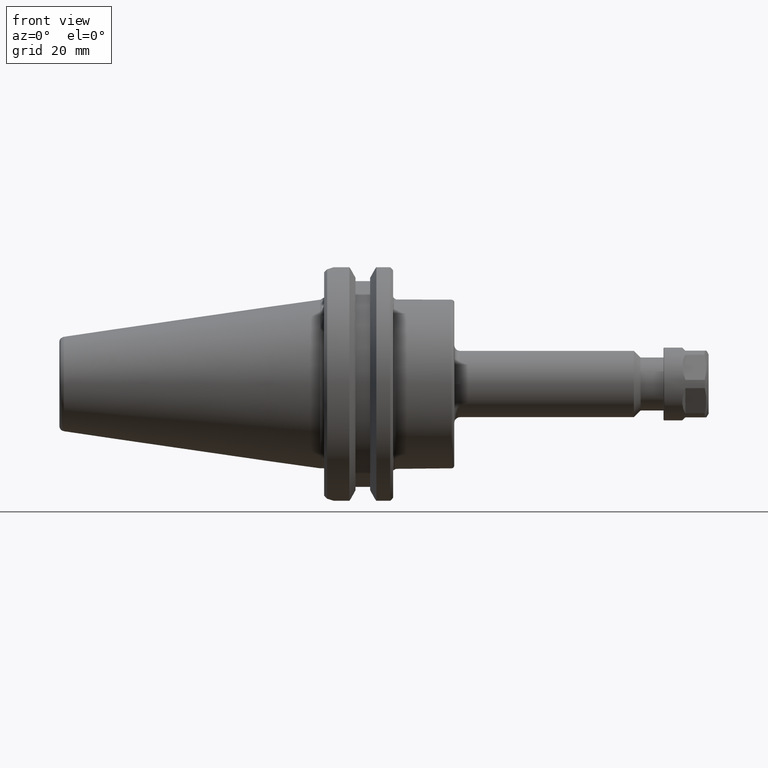
[diagram: clean part render]
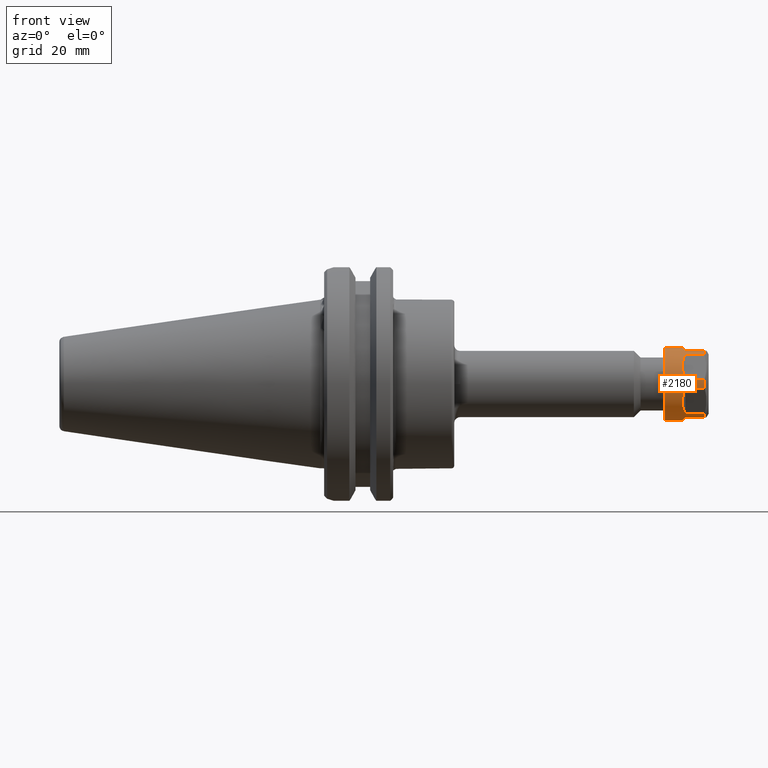
[diagram: same view with one face highlighted and labeled with its STEP entity id]
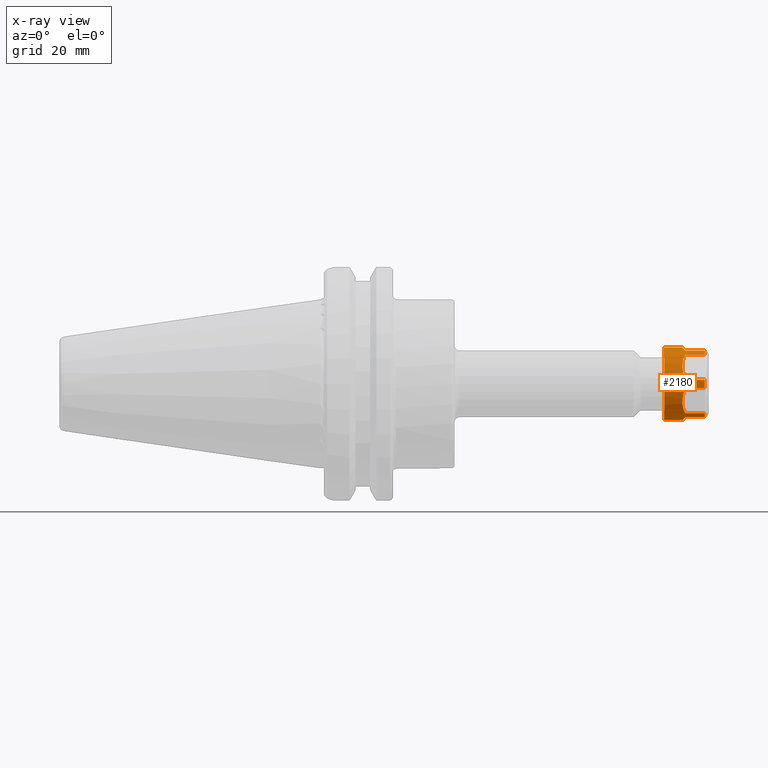
[diagram: x-ray of the same camera — body ghosted, the highlighted face saturated]
A machine part, front view. The second image highlights one B-rep face of the part: STEP entity #2180.
The next image is the same camera in x-ray: the body ghosted, the highlighted face saturated — about 0% of this face is hidden behind the body in this view.
In plain terms, the highlighted cylindrical surface (bore or boss wall) has radius 9.525 mm, axis along (-1, -0, 0).
Its self-contained STEP definition (entity closure, byte-faithful):
#23=ELLIPSE('',#2390,0.53033008588991,0.375);
#24=ELLIPSE('',#2392,0.53033008588991,0.375);
#25=ELLIPSE('',#2394,0.53033008588991,0.375);
#26=ELLIPSE('',#2396,0.53033008588991,0.375);
#27=ELLIPSE('',#2398,0.53033008588991,0.375);
#28=ELLIPSE('',#2400,0.53033008588991,0.375);
#142=CYLINDRICAL_SURFACE('',#2388,0.375);
#243=LINE('',#4425,#357);
#244=LINE('',#4429,#358);
#245=LINE('',#4433,#359);
#246=LINE('',#4437,#360);
#247=LINE('',#4441,#361);
#248=LINE('',#4445,#362);
#249=LINE('',#4449,#363);
#250=LINE('',#4453,#364);
#251=LINE('',#4457,#365);
#252=LINE('',#4461,#366);
#253=LINE('',#4465,#367);
#254=LINE('',#4469,#368);
#357=VECTOR('',#2898,0.2);
#358=VECTOR('',#2901,0.2);
#359=VECTOR('',#2904,0.2);
#360=VECTOR('',#2907,0.2);
#361=VECTOR('',#2910,0.2);
#362=VECTOR('',#2913,0.2);
#363=VECTOR('',#2916,0.2);
#364=VECTOR('',#2919,0.2);
#365=VECTOR('',#2922,0.2);
#366=VECTOR('',#2925,0.2);
#367=VECTOR('',#2928,0.2);
#368=VECTOR('',#2931,0.2);
#476=FACE_BOUND('',#770,.T.);
#597=FACE_OUTER_BOUND('',#769,.T.);
#769=EDGE_LOOP('',(#1886,#1887,#1888,#1889,#1890,#1891,#1892,#1893,#1894,
#1895,#1896,#1897,#1898,#1899,#1900,#1901,#1902,#1903,#1904,#1905,#1906,
#1907,#1908,#1909));
#770=EDGE_LOOP('',(#1910));
#885=CIRCLE('',#2384,0.375);
#888=CIRCLE('',#2389,0.375);
#889=CIRCLE('',#2391,0.375);
#890=CIRCLE('',#2393,0.375);
#891=CIRCLE('',#2395,0.375);
#892=CIRCLE('',#2397,0.375);
#893=CIRCLE('',#2399,0.375);
#1096=VERTEX_POINT('',#4415);
#1099=VERTEX_POINT('',#4423);
#1100=VERTEX_POINT('',#4424);
#1101=VERTEX_POINT('',#4426);
#1102=VERTEX_POINT('',#4428);
#1103=VERTEX_POINT('',#4430);
#1104=VERTEX_POINT('',#4432);
#1105=VERTEX_POINT('',#4434);
#1106=VERTEX_POINT('',#4436);
#1107=VERTEX_POINT('',#4438);
#1108=VERTEX_POINT('',#4440);
#1109=VERTEX_POINT('',#4442);
#1110=VERTEX_POINT('',#4444);
#1111=VERTEX_POINT('',#4446);
#1112=VERTEX_POINT('',#4448);
#1113=VERTEX_POINT('',#4450);
#1114=VERTEX_POINT('',#4452);
#1115=VERTEX_POINT('',#4454);
#1116=VERTEX_POINT('',#4456);
#1117=VERTEX_POINT('',#4458);
#1118=VERTEX_POINT('',#4460);
#1119=VERTEX_POINT('',#4462);
#1120=VERTEX_POINT('',#4464);
#1121=VERTEX_POINT('',#4466);
#1122=VERTEX_POINT('',#4468);
#1368=EDGE_CURVE('',#1096,#1096,#885,.T.);
#1371=EDGE_CURVE('',#1099,#1100,#243,.T.);
#1372=EDGE_CURVE('',#1100,#1101,#888,.T.);
#1373=EDGE_CURVE('',#1101,#1102,#244,.T.);
#1374=EDGE_CURVE('',#1102,#1103,#23,.T.);
#1375=EDGE_CURVE('',#1103,#1104,#245,.T.);
#1376=EDGE_CURVE('',#1104,#1105,#889,.T.);
#1377=EDGE_CURVE('',#1105,#1106,#246,.T.);
#1378=EDGE_CURVE('',#1106,#1107,#24,.T.);
#1379=EDGE_CURVE('',#1107,#1108,#247,.T.);
#1380=EDGE_CURVE('',#1108,#1109,#890,.T.);
#1381=EDGE_CURVE('',#1109,#1110,#248,.T.);
#1382=EDGE_CURVE('',#1110,#1111,#25,.T.);
#1383=EDGE_CURVE('',#1111,#1112,#249,.T.);
#1384=EDGE_CURVE('',#1112,#1113,#891,.T.);
#1385=EDGE_CURVE('',#1113,#1114,#250,.T.);
#1386=EDGE_CURVE('',#1114,#1115,#26,.T.);
#1387=EDGE_CURVE('',#1115,#1116,#251,.T.);
#1388=EDGE_CURVE('',#1116,#1117,#892,.T.);
#1389=EDGE_CURVE('',#1117,#1118,#252,.T.);
#1390=EDGE_CURVE('',#1118,#1119,#27,.T.);
#1391=EDGE_CURVE('',#1119,#1120,#253,.T.);
#1392=EDGE_CURVE('',#1120,#1121,#893,.T.);
#1393=EDGE_CURVE('',#1121,#1122,#254,.T.);
#1394=EDGE_CURVE('',#1122,#1099,#28,.T.);
#1886=ORIENTED_EDGE('',*,*,#1371,.T.);
#1887=ORIENTED_EDGE('',*,*,#1372,.T.);
#1888=ORIENTED_EDGE('',*,*,#1373,.T.);
#1889=ORIENTED_EDGE('',*,*,#1374,.T.);
#1890=ORIENTED_EDGE('',*,*,#1375,.T.);
#1891=ORIENTED_EDGE('',*,*,#1376,.T.);
#1892=ORIENTED_EDGE('',*,*,#1377,.T.);
#1893=ORIENTED_EDGE('',*,*,#1378,.T.);
#1894=ORIENTED_EDGE('',*,*,#1379,.T.);
#1895=ORIENTED_EDGE('',*,*,#1380,.T.);
#1896=ORIENTED_EDGE('',*,*,#1381,.T.);
#1897=ORIENTED_EDGE('',*,*,#1382,.T.);
#1898=ORIENTED_EDGE('',*,*,#1383,.T.);
#1899=ORIENTED_EDGE('',*,*,#1384,.T.);
#1900=ORIENTED_EDGE('',*,*,#1385,.T.);
#1901=ORIENTED_EDGE('',*,*,#1386,.T.);
#1902=ORIENTED_EDGE('',*,*,#1387,.T.);
#1903=ORIENTED_EDGE('',*,*,#1388,.T.);
#1904=ORIENTED_EDGE('',*,*,#1389,.T.);
#1905=ORIENTED_EDGE('',*,*,#1390,.T.);
#1906=ORIENTED_EDGE('',*,*,#1391,.T.);
#1907=ORIENTED_EDGE('',*,*,#1392,.T.);
#1908=ORIENTED_EDGE('',*,*,#1393,.T.);
#1909=ORIENTED_EDGE('',*,*,#1394,.T.);
#1910=ORIENTED_EDGE('',*,*,#1368,.F.);
#2180=ADVANCED_FACE('',(#597,#476),#142,.T.);
#2384=AXIS2_PLACEMENT_3D('',#4416,#2888,#2889);
#2388=AXIS2_PLACEMENT_3D('',#4422,#2896,#2897);
#2389=AXIS2_PLACEMENT_3D('',#4427,#2899,#2900);
#2390=AXIS2_PLACEMENT_3D('',#4431,#2902,#2903);
#2391=AXIS2_PLACEMENT_3D('',#4435,#2905,#2906);
#2392=AXIS2_PLACEMENT_3D('',#4439,#2908,#2909);
#2393=AXIS2_PLACEMENT_3D('',#4443,#2911,#2912);
#2394=AXIS2_PLACEMENT_3D('',#4447,#2914,#2915);
#2395=AXIS2_PLACEMENT_3D('',#4451,#2917,#2918);
#2396=AXIS2_PLACEMENT_3D('',#4455,#2920,#2921);
#2397=AXIS2_PLACEMENT_3D('',#4459,#2923,#2924);
#2398=AXIS2_PLACEMENT_3D('',#4463,#2926,#2927);
#2399=AXIS2_PLACEMENT_3D('',#4467,#2929,#2930);
#2400=AXIS2_PLACEMENT_3D('',#4470,#2932,#2933);
#2888=DIRECTION('center_axis',(1.,0.,0.));
#2889=DIRECTION('ref_axis',(0.,-1.,1.22460635382238E-16));
#2896=DIRECTION('center_axis',(1.,0.,0.));
#2897=DIRECTION('ref_axis',(0.,1.,0.));
#2898=DIRECTION('',(-1.,0.,0.));
#2899=DIRECTION('center_axis',(1.,0.,0.));
#2900=DIRECTION('ref_axis',(0.,1.,0.));
#2901=DIRECTION('',(1.,0.,0.));
#2902=DIRECTION('center_axis',(0.707106781186548,-0.353553390593273,0.612372435695795));
#2903=DIRECTION('ref_axis',(0.707106781186547,0.353553390593273,-0.612372435695795));
#2904=DIRECTION('',(-1.,0.,0.));
#2905=DIRECTION('center_axis',(1.,0.,0.));
#2906=DIRECTION('ref_axis',(0.,1.,0.));
#2907=DIRECTION('',(1.,0.,0.));
#2908=DIRECTION('center_axis',(0.707106781186548,-0.707106781186547,0.));
#2909=DIRECTION('ref_axis',(0.707106781186547,0.707106781186548,0.));
#2910=DIRECTION('',(-1.,0.,0.));
#2911=DIRECTION('center_axis',(1.,0.,0.));
#2912=DIRECTION('ref_axis',(0.,1.,0.));
#2913=DIRECTION('',(1.,0.,0.));
#2914=DIRECTION('center_axis',(0.707106781186548,-0.353553390593274,-0.612372435695794));
#2915=DIRECTION('ref_axis',(0.707106781186547,0.353553390593274,0.612372435695794));
#2916=DIRECTION('',(-1.,0.,0.));
#2917=DIRECTION('center_axis',(1.,0.,0.));
#2918=DIRECTION('ref_axis',(0.,1.,0.));
#2919=DIRECTION('',(1.,0.,0.));
#2920=DIRECTION('center_axis',(0.707106781186548,0.353553390593274,-0.612372435695794));
#2921=DIRECTION('ref_axis',(-0.707106781186547,0.353553390593274,-0.612372435695795));
#2922=DIRECTION('',(-1.,0.,0.));
#2923=DIRECTION('center_axis',(1.,0.,0.));
#2924=DIRECTION('ref_axis',(0.,1.,0.));
#2925=DIRECTION('',(1.,0.,0.));
#2926=DIRECTION('center_axis',(0.707106781186548,0.707106781186547,-8.65927457071935E-17));
#2927=DIRECTION('ref_axis',(-0.707106781186547,0.707106781186548,0.));
#2928=DIRECTION('',(-1.,0.,0.));
#2929=DIRECTION('center_axis',(1.,0.,0.));
#2930=DIRECTION('ref_axis',(0.,1.,0.));
#2931=DIRECTION('',(1.,0.,0.));
#2932=DIRECTION('center_axis',(0.707106781186548,0.353553390593274,0.612372435695794));
#2933=DIRECTION('ref_axis',(-0.707106781186547,0.353553390593274,0.612372435695794));
#4415=CARTESIAN_POINT('',(0.455,0.375,0.));
#4416=CARTESIAN_POINT('Origin',(0.455,0.,0.));
#4422=CARTESIAN_POINT('Origin',(0.2525,0.,0.));
#4423=CARTESIAN_POINT('',(0.24,-0.0427067287133629,-0.372560243883594));
#4424=CARTESIAN_POINT('',(0.04,-0.0427067287133629,-0.372560243883594));
#4425=CARTESIAN_POINT('',(0.2525,-0.042706728713363,-0.372560243883594));
#4426=CARTESIAN_POINT('',(0.04,0.0427067287133625,-0.372560243883594));
#4427=CARTESIAN_POINT('Origin',(0.04,0.,0.));
#4428=CARTESIAN_POINT('',(0.24,0.0427067287133625,-0.372560243883594));
#4429=CARTESIAN_POINT('',(0.2525,0.0427067287133625,-0.372560243883594));
#4430=CARTESIAN_POINT('',(0.24,0.301293271286637,-0.2232652339201));
#4431=CARTESIAN_POINT('Origin',(-0.104,0.,0.));
#4432=CARTESIAN_POINT('',(0.04,0.301293271286637,-0.2232652339201));
#4433=CARTESIAN_POINT('',(0.2525,0.301293271286637,-0.2232652339201));
#4434=CARTESIAN_POINT('',(0.04,0.344,-0.149295009963495));
#4435=CARTESIAN_POINT('Origin',(0.04,0.,0.));
#4436=CARTESIAN_POINT('',(0.24,0.344,-0.149295009963495));
#4437=CARTESIAN_POINT('',(0.2525,0.344,-0.149295009963495));
#4438=CARTESIAN_POINT('',(0.24,0.344,0.149295009963495));
#4439=CARTESIAN_POINT('Origin',(-0.104,0.,0.));
#4440=CARTESIAN_POINT('',(0.04,0.344,0.149295009963495));
#4441=CARTESIAN_POINT('',(0.2525,0.344,0.149295009963495));
#4442=CARTESIAN_POINT('',(0.04,0.301293271286637,0.2232652339201));
#4443=CARTESIAN_POINT('Origin',(0.04,0.,0.));
#4444=CARTESIAN_POINT('',(0.24,0.301293271286637,0.2232652339201));
#4445=CARTESIAN_POINT('',(0.2525,0.301293271286637,0.2232652339201));
#4446=CARTESIAN_POINT('',(0.24,0.0427067287133628,0.372560243883594));
#4447=CARTESIAN_POINT('Origin',(-0.104,0.,0.));
#4448=CARTESIAN_POINT('',(0.04,0.0427067287133628,0.372560243883594));
#4449=CARTESIAN_POINT('',(0.2525,0.0427067287133629,0.372560243883594));
#4450=CARTESIAN_POINT('',(0.04,-0.0427067287133626,0.372560243883594));
#4451=CARTESIAN_POINT('Origin',(0.04,0.,0.));
#4452=CARTESIAN_POINT('',(0.24,-0.0427067287133626,0.372560243883594));
#4453=CARTESIAN_POINT('',(0.2525,-0.0427067287133628,0.372560243883594));
#4454=CARTESIAN_POINT('',(0.24,-0.301293271286637,0.2232652339201));
#4455=CARTESIAN_POINT('Origin',(-0.104,0.,0.));
#4456=CARTESIAN_POINT('',(0.04,-0.301293271286637,0.2232652339201));
#4457=CARTESIAN_POINT('',(0.2525,-0.301293271286637,0.2232652339201));
#4458=CARTESIAN_POINT('',(0.04,-0.344,0.149295009963495));
#4459=CARTESIAN_POINT('Origin',(0.04,0.,0.));
#4460=CARTESIAN_POINT('',(0.24,-0.344,0.149295009963495));
#4461=CARTESIAN_POINT('',(0.2525,-0.344,0.149295009963495));
#4462=CARTESIAN_POINT('',(0.24,-0.344,-0.149295009963495));
#4463=CARTESIAN_POINT('Origin',(-0.104,0.,0.));
#4464=CARTESIAN_POINT('',(0.04,-0.344,-0.149295009963495));
#4465=CARTESIAN_POINT('',(0.2525,-0.344,-0.149295009963495));
#4466=CARTESIAN_POINT('',(0.04,-0.301293271286637,-0.223265233920099));
#4467=CARTESIAN_POINT('Origin',(0.04,0.,0.));
#4468=CARTESIAN_POINT('',(0.24,-0.301293271286637,-0.223265233920099));
#4469=CARTESIAN_POINT('',(0.2525,-0.301293271286637,-0.2232652339201));
#4470=CARTESIAN_POINT('Origin',(-0.104,0.,0.));